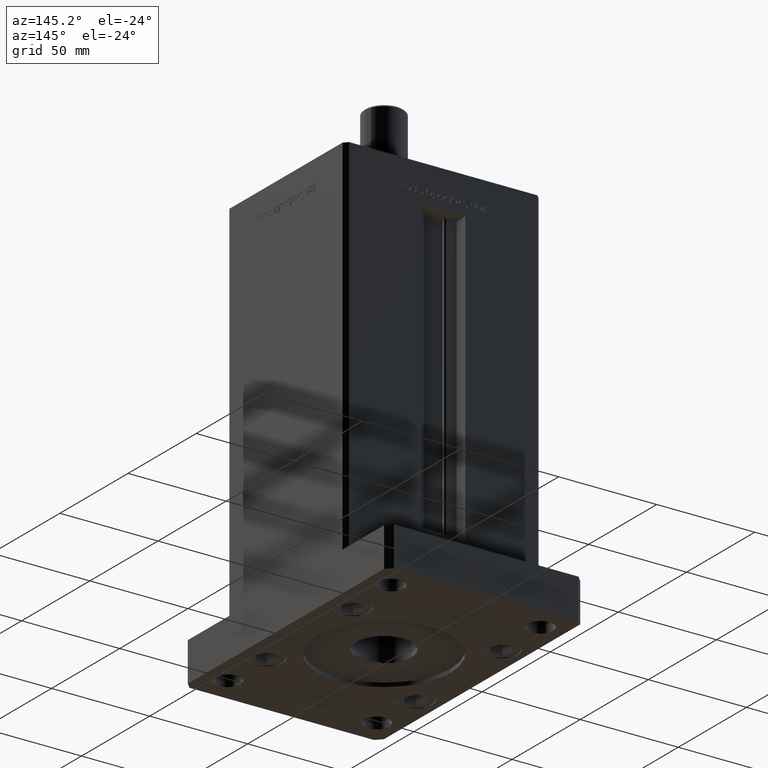
[diagram: clean part render]
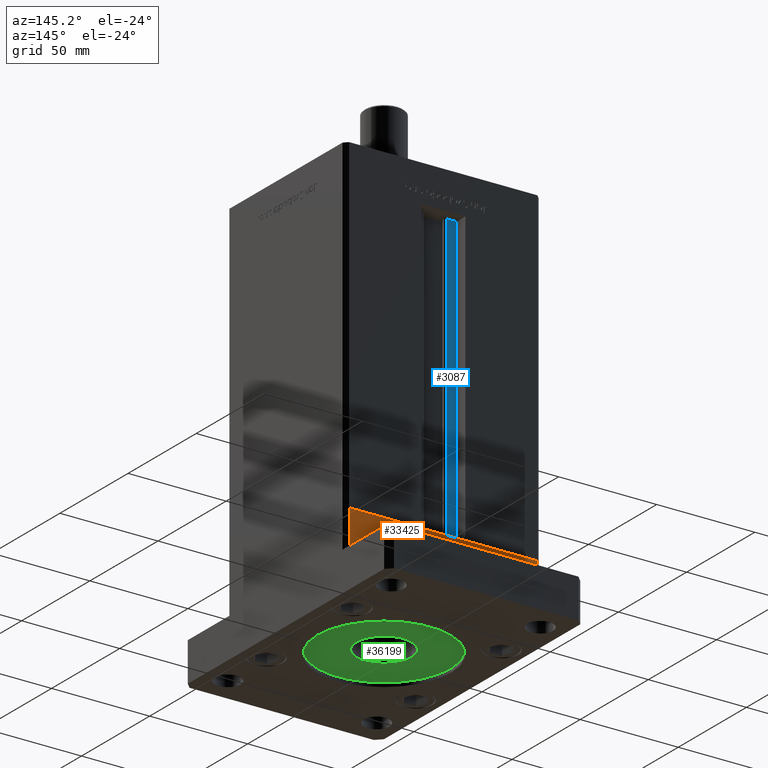
[diagram: same view with three faces highlighted in distinct colors, each labeled with its STEP entity id]
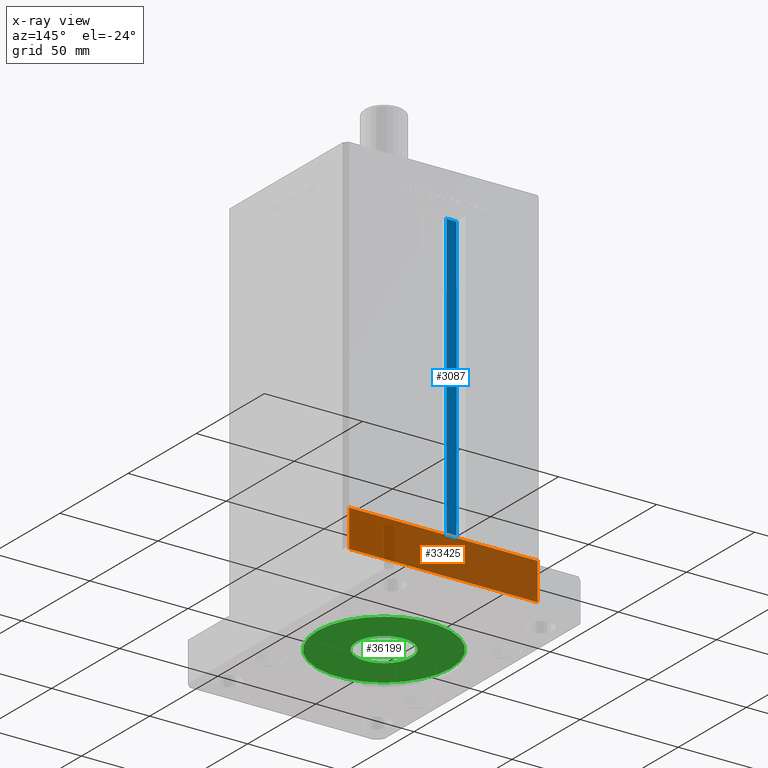
[diagram: x-ray of the same camera — body ghosted, the three highlighted faces saturated]
A machine part, auxiliary view with three faces highlighted in distinct colors.
The next image is the same camera in x-ray (body ghosted, the three faces saturated) — at least one of them is partly hidden behind the body in this view.
Their STEP definitions:

[orange] entity #33425 — the highlighted planar face has unit normal (0, 1, 0).
#727 = EDGE_CURVE ( 'NONE', #10099, #7175, #15023, .T. ) ;
#757 = CARTESIAN_POINT ( 'NONE',  ( 47.99999999999990763, 43.50000000000000000, -19.00000000000000000 ) ) ;
#1414 = ORIENTED_EDGE ( 'NONE', *, *, #34915, .T. ) ;
#1929 = EDGE_CURVE ( 'NONE', #10099, #17335, #42268, .T. ) ;
#4337 = DIRECTION ( 'NONE',  ( -3.614007241618350743E-16, 1.000000000000000000, 0.000000000000000000 ) ) ;
#4942 = AXIS2_PLACEMENT_3D ( 'NONE', #757, #4337, #17493 ) ;
#7175 = VERTEX_POINT ( 'NONE', #37497 ) ;
#10099 = VERTEX_POINT ( 'NONE', #50179 ) ;
#12195 = VERTEX_POINT ( 'NONE', #51047 ) ;
#13795 = CARTESIAN_POINT ( 'NONE',  ( 47.99999999999990763, 43.50000000000000000, 0.000000000000000000 ) ) ;
#15023 = LINE ( 'NONE', #31693, #44957 ) ;
#15277 = DIRECTION ( 'NONE',  ( -1.000000000000000000, -3.614007241618350743E-16, 0.000000000000000000 ) ) ;
#17335 = VERTEX_POINT ( 'NONE', #54164 ) ;
#17375 = CARTESIAN_POINT ( 'NONE',  ( 47.99999999999990763, 43.50000000000000000, -19.00000000000000000 ) ) ;
#17483 = ORIENTED_EDGE ( 'NONE', *, *, #1929, .F. ) ;
#17493 = DIRECTION ( 'NONE',  ( -1.000000000000000000, -3.614007241618350743E-16, 0.000000000000000000 ) ) ;
#25788 = EDGE_LOOP ( 'NONE', ( #37384, #17483, #25986, #1414 ) ) ;
#25902 = LINE ( 'NONE', #42609, #53062 ) ;
#25986 = ORIENTED_EDGE ( 'NONE', *, *, #727, .T. ) ;
#27701 = VECTOR ( 'NONE', #30474, 1000.000000000000000 ) ;
#30155 = EDGE_CURVE ( 'NONE', #17335, #12195, #42799, .T. ) ;
#30474 = DIRECTION ( 'NONE',  ( -1.000000000000000000, -3.614007241618350743E-16, 0.000000000000000000 ) ) ;
#30494 = DIRECTION ( 'NONE',  ( 0.000000000000000000, 0.000000000000000000, 1.000000000000000000 ) ) ;
#31693 = CARTESIAN_POINT ( 'NONE',  ( 47.99999999999990763, 43.50000000000000000, -19.00000000000000000 ) ) ;
#33425 = ADVANCED_FACE ( 'NONE', ( #41853 ), #38297, .T. ) ;
#34915 = EDGE_CURVE ( 'NONE', #7175, #12195, #25902, .T. ) ;
#37384 = ORIENTED_EDGE ( 'NONE', *, *, #30155, .F. ) ;
#37497 = CARTESIAN_POINT ( 'NONE',  ( -48.00000000000000711, 43.49999999999996447, -19.00000000000000000 ) ) ;
#38297 = PLANE ( 'NONE',  #4942 ) ;
#40131 = DIRECTION ( 'NONE',  ( 0.000000000000000000, 0.000000000000000000, 1.000000000000000000 ) ) ;
#41527 = VECTOR ( 'NONE', #30494, 1000.000000000000000 ) ;
#41853 = FACE_OUTER_BOUND ( 'NONE', #25788, .T. ) ;
#42268 = LINE ( 'NONE', #17375, #41527 ) ;
#42609 = CARTESIAN_POINT ( 'NONE',  ( -48.00000000000000711, 43.49999999999996447, -19.00000000000000000 ) ) ;
#42799 = LINE ( 'NONE', #13795, #27701 ) ;
#44957 = VECTOR ( 'NONE', #15277, 1000.000000000000000 ) ;
#50179 = CARTESIAN_POINT ( 'NONE',  ( 47.99999999999990763, 43.50000000000000000, -19.00000000000000000 ) ) ;
#51047 = CARTESIAN_POINT ( 'NONE',  ( -48.00000000000000711, 43.49999999999996447, 0.000000000000000000 ) ) ;
#53062 = VECTOR ( 'NONE', #40131, 1000.000000000000000 ) ;
#54164 = CARTESIAN_POINT ( 'NONE',  ( 47.99999999999990763, 43.50000000000000000, 0.000000000000000000 ) ) ;

[blue] entity #3087 — the highlighted planar face has unit normal (0, -1, 0).
#1110 = ORIENTED_EDGE ( 'NONE', *, *, #44077, .T. ) ;
#1549 = CARTESIAN_POINT ( 'NONE',  ( -11.24999999999999822, 36.99999999999999289, 0.000000000000000000 ) ) ;
#3087 = ADVANCED_FACE ( 'NONE', ( #45222 ), #21873, .F. ) ;
#4351 = CARTESIAN_POINT ( 'NONE',  ( -6.183333333333997928, 36.99999999999999289, 0.000000000000000000 ) ) ;
#7741 = DIRECTION ( 'NONE',  ( 0.000000000000000000, 0.000000000000000000, -1.000000000000000000 ) ) ;
#10149 = CARTESIAN_POINT ( 'NONE',  ( 0.000000000000000000, 36.99999999999999289, 148.5000000000000000 ) ) ;
#10256 = VECTOR ( 'NONE', #22695, 1000.000000000000000 ) ;
#10395 = CARTESIAN_POINT ( 'NONE',  ( -6.183333333333997928, 36.99999999999999289, 0.000000000000000000 ) ) ;
#13068 = DIRECTION ( 'NONE',  ( -0.000000000000000000, -0.000000000000000000, 1.000000000000000000 ) ) ;
#13409 = LINE ( 'NONE', #10395, #10256 ) ;
#13458 = EDGE_LOOP ( 'NONE', ( #46643, #50340, #1110, #28784 ) ) ;
#13594 = AXIS2_PLACEMENT_3D ( 'NONE', #4351, #38308, #7741 ) ;
#13848 = VECTOR ( 'NONE', #17541, 1000.000000000000000 ) ;
#17541 = DIRECTION ( 'NONE',  ( -1.000000000000000000, 0.000000000000000000, 0.000000000000000000 ) ) ;
#19618 = CARTESIAN_POINT ( 'NONE',  ( -6.183333333333997928, 36.99999999999999289, 0.000000000000000000 ) ) ;
#21873 = PLANE ( 'NONE',  #13594 ) ;
#22695 = DIRECTION ( 'NONE',  ( 1.000000000000000000, -0.000000000000000000, -0.000000000000000000 ) ) ;
#22914 = LINE ( 'NONE', #19618, #48481 ) ;
#23434 = EDGE_CURVE ( 'NONE', #41647, #25911, #22914, .T. ) ;
#23603 = VERTEX_POINT ( 'NONE', #33538 ) ;
#25911 = VERTEX_POINT ( 'NONE', #49214 ) ;
#28756 = CARTESIAN_POINT ( 'NONE',  ( -11.24999999999999822, 36.99999999999999289, 148.5000000000000000 ) ) ;
#28784 = ORIENTED_EDGE ( 'NONE', *, *, #37263, .F. ) ;
#30658 = LINE ( 'NONE', #10149, #13848 ) ;
#30949 = EDGE_CURVE ( 'NONE', #23603, #41647, #13409, .T. ) ;
#33538 = CARTESIAN_POINT ( 'NONE',  ( -11.24999999999999822, 36.99999999999999289, 0.000000000000000000 ) ) ;
#36436 = VERTEX_POINT ( 'NONE', #28756 ) ;
#37263 = EDGE_CURVE ( 'NONE', #25911, #36436, #30658, .T. ) ;
#37976 = LINE ( 'NONE', #1549, #42902 ) ;
#38215 = CARTESIAN_POINT ( 'NONE',  ( -6.183333333333997928, 36.99999999999999289, 0.000000000000000000 ) ) ;
#38308 = DIRECTION ( 'NONE',  ( 0.000000000000000000, -1.000000000000000000, -0.000000000000000000 ) ) ;
#40420 = DIRECTION ( 'NONE',  ( -0.000000000000000000, -0.000000000000000000, 1.000000000000000000 ) ) ;
#41647 = VERTEX_POINT ( 'NONE', #38215 ) ;
#42902 = VECTOR ( 'NONE', #13068, 1000.000000000000000 ) ;
#44077 = EDGE_CURVE ( 'NONE', #23603, #36436, #37976, .T. ) ;
#45222 = FACE_OUTER_BOUND ( 'NONE', #13458, .T. ) ;
#46643 = ORIENTED_EDGE ( 'NONE', *, *, #23434, .F. ) ;
#48481 = VECTOR ( 'NONE', #40420, 1000.000000000000000 ) ;
#49214 = CARTESIAN_POINT ( 'NONE',  ( -6.183333333333997928, 36.99999999999999289, 148.5000000000000000 ) ) ;
#50340 = ORIENTED_EDGE ( 'NONE', *, *, #30949, .F. ) ;

[green] entity #36199 — the highlighted planar face has unit normal (0, 0, -1).
#170 = ORIENTED_EDGE ( 'NONE', *, *, #50101, .T. ) ;
#1119 = CARTESIAN_POINT ( 'NONE',  ( 0.000000000000000000, 0.000000000000000000, 2.000000000000000000 ) ) ;
#3563 = AXIS2_PLACEMENT_3D ( 'NONE', #1119, #43565, #30426 ) ;
#3903 = DIRECTION ( 'NONE',  ( 0.000000000000000000, 0.000000000000000000, -1.000000000000000000 ) ) ;
#4658 = CARTESIAN_POINT ( 'NONE',  ( 0.000000000000000000, 0.000000000000000000, 2.000000000000000000 ) ) ;
#6168 = EDGE_LOOP ( 'NONE', ( #20687, #42442 ) ) ;
#6699 = DIRECTION ( 'NONE',  ( -1.000000000000000000, 0.000000000000000000, 0.000000000000000000 ) ) ;
#8034 = PLANE ( 'NONE',  #11183 ) ;
#8853 = AXIS2_PLACEMENT_3D ( 'NONE', #15934, #24674, #32620 ) ;
#10870 = CARTESIAN_POINT ( 'NONE',  ( 14.00000000000000000, 0.000000000000000000, 2.000000000000000000 ) ) ;
#11183 = AXIS2_PLACEMENT_3D ( 'NONE', #24712, #3903, #29090 ) ;
#15934 = CARTESIAN_POINT ( 'NONE',  ( 0.000000000000000000, 0.000000000000000000, 2.000000000000000000 ) ) ;
#16996 = DIRECTION ( 'NONE',  ( -0.000000000000000000, -0.000000000000000000, 1.000000000000000000 ) ) ;
#18089 = CARTESIAN_POINT ( 'NONE',  ( 34.00000000000000000, 4.163799117101000559E-15, 2.000000000000000000 ) ) ;
#18360 = AXIS2_PLACEMENT_3D ( 'NONE', #4658, #16996, #42168 ) ;
#20687 = ORIENTED_EDGE ( 'NONE', *, *, #49225, .T. ) ;
#20881 = FACE_BOUND ( 'NONE', #6168, .T. ) ;
#22556 = VERTEX_POINT ( 'NONE', #10870 ) ;
#24674 = DIRECTION ( 'NONE',  ( 0.000000000000000000, 0.000000000000000000, -1.000000000000000000 ) ) ;
#24712 = CARTESIAN_POINT ( 'NONE',  ( 0.000000000000000000, 0.000000000000000000, 2.000000000000000000 ) ) ;
#24825 = ORIENTED_EDGE ( 'NONE', *, *, #27491, .T. ) ;
#24927 = CARTESIAN_POINT ( 'NONE',  ( -14.00000000000000000, 1.714505518806294638E-15, 2.000000000000000000 ) ) ;
#27491 = EDGE_CURVE ( 'NONE', #44719, #46669, #49486, .T. ) ;
#27629 = AXIS2_PLACEMENT_3D ( 'NONE', #39826, #52377, #6699 ) ;
#28819 = FACE_OUTER_BOUND ( 'NONE', #46076, .T. ) ;
#29090 = DIRECTION ( 'NONE',  ( -1.000000000000000000, 0.000000000000000000, -0.000000000000000000 ) ) ;
#30426 = DIRECTION ( 'NONE',  ( -1.000000000000000000, 0.000000000000000000, 0.000000000000000000 ) ) ;
#31598 = CIRCLE ( 'NONE', #8853, 34.00000000000000000 ) ;
#32620 = DIRECTION ( 'NONE',  ( -1.000000000000000000, 0.000000000000000000, 0.000000000000000000 ) ) ;
#36199 = ADVANCED_FACE ( 'NONE', ( #28819, #20881 ), #8034, .T. ) ;
#37931 = VERTEX_POINT ( 'NONE', #24927 ) ;
#39826 = CARTESIAN_POINT ( 'NONE',  ( 0.000000000000000000, 0.000000000000000000, 2.000000000000000000 ) ) ;
#42168 = DIRECTION ( 'NONE',  ( -1.000000000000000000, 0.000000000000000000, 0.000000000000000000 ) ) ;
#42442 = ORIENTED_EDGE ( 'NONE', *, *, #46603, .T. ) ;
#43565 = DIRECTION ( 'NONE',  ( -0.000000000000000000, -0.000000000000000000, 1.000000000000000000 ) ) ;
#43578 = CARTESIAN_POINT ( 'NONE',  ( -34.00000000000000000, 0.000000000000000000, 2.000000000000000000 ) ) ;
#43804 = CIRCLE ( 'NONE', #3563, 14.00000000000000000 ) ;
#44719 = VERTEX_POINT ( 'NONE', #43578 ) ;
#45463 = CIRCLE ( 'NONE', #18360, 14.00000000000000000 ) ;
#46076 = EDGE_LOOP ( 'NONE', ( #24825, #170 ) ) ;
#46603 = EDGE_CURVE ( 'NONE', #37931, #22556, #45463, .T. ) ;
#46669 = VERTEX_POINT ( 'NONE', #18089 ) ;
#49225 = EDGE_CURVE ( 'NONE', #22556, #37931, #43804, .T. ) ;
#49486 = CIRCLE ( 'NONE', #27629, 34.00000000000000000 ) ;
#50101 = EDGE_CURVE ( 'NONE', #46669, #44719, #31598, .T. ) ;
#52377 = DIRECTION ( 'NONE',  ( 0.000000000000000000, 0.000000000000000000, -1.000000000000000000 ) ) ;